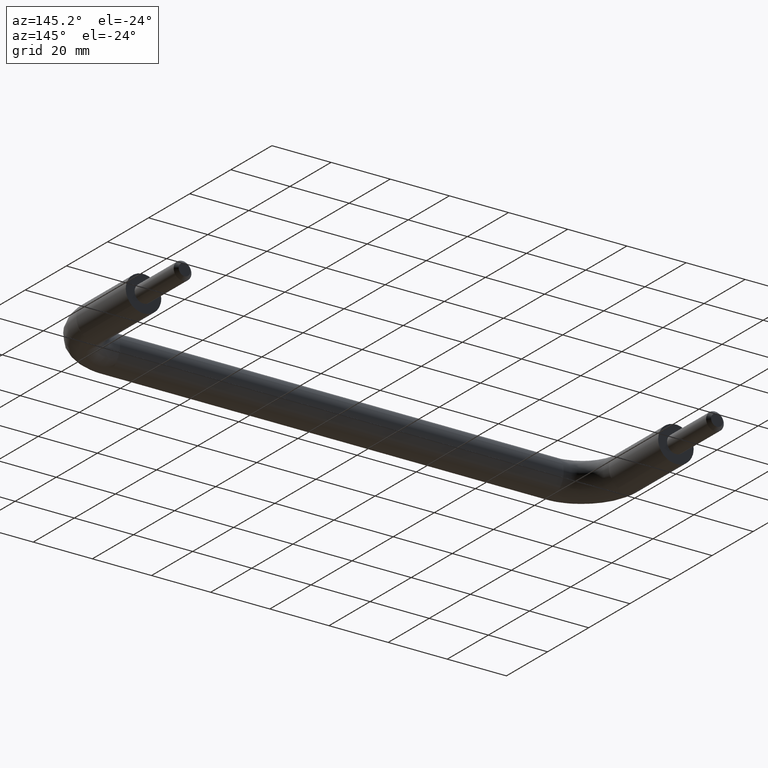
[diagram: clean part render]
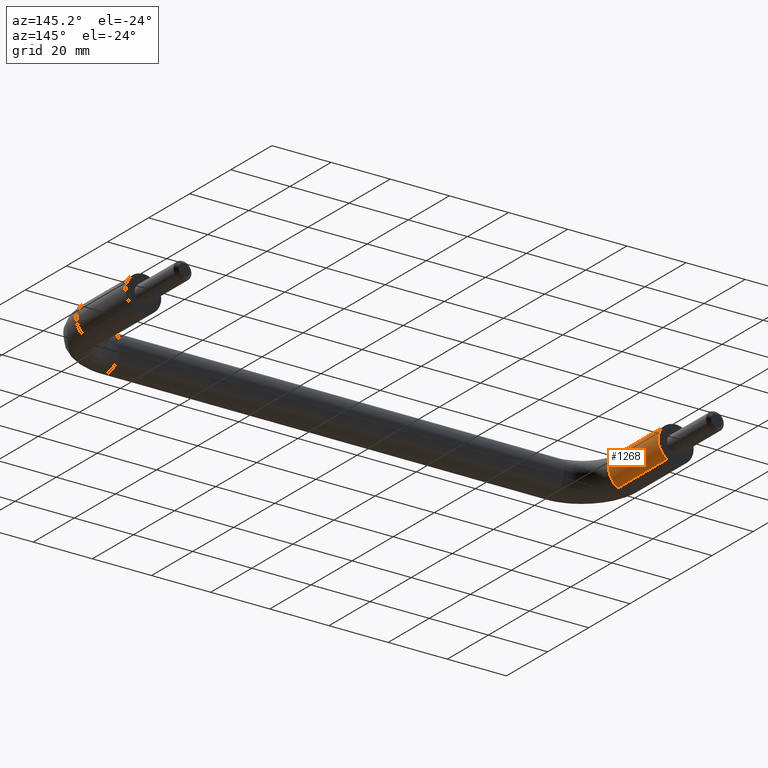
[diagram: same view with one face highlighted and labeled with its STEP entity id]
A machine part, auxiliary view. The second image highlights one B-rep face of the part: STEP entity #1268.
In plain terms, the highlighted face is a freeform B-spline surface patch.
Its self-contained STEP definition (entity closure, byte-faithful):
#1170=CARTESIAN_POINT('',(2.858452214625503,0.600000000015521,-5.275615613930971));
#1171=CARTESIAN_POINT('',(2.881914728903769,0.600000000015521,-5.262630804775241));
#1172=CARTESIAN_POINT('',(3.528453658424199,0.600000000015521,-4.904818146165622));
#1173=CARTESIAN_POINT('',(4.053541245693961,0.600000000015521,-4.423664020860743));
#1174=CARTESIAN_POINT('',(8.477205266554705,0.600000000015522,-0.370122775166782));
#1175=CARTESIAN_POINT('',(4.407069002992790,0.600000000015522,4.071651529768659));
#1176=CARTESIAN_POINT('',(4.390530172574747,0.600000000015521,4.089700496001606));
#1177=CARTESIAN_POINT('',(2.858452214625507,-24.615000000636691,-5.275615613930971));
#1178=CARTESIAN_POINT('',(2.881914728903774,-24.615000000636694,-5.262630804775241));
#1179=CARTESIAN_POINT('',(3.528453658424203,-24.615000000636691,-4.904818146165622));
#1180=CARTESIAN_POINT('',(4.053541245693965,-24.615000000636691,-4.423664020860743));
#1181=CARTESIAN_POINT('',(8.477205266554709,-24.615000000636698,-0.370122775166782));
#1182=CARTESIAN_POINT('',(4.407069002992794,-24.615000000636709,4.071651529768659));
#1183=CARTESIAN_POINT('',(4.390530172574751,-24.615000000636687,4.089700496001606));
#1191=(BOUNDED_SURFACE()B_SPLINE_SURFACE(2,1,((#1170,#1177),(#1171,#1178),(#1172,#1179),(#1173,#1180),(#1174,#1181),(#1175,#1182),(#1176,#1183)),.UNSPECIFIED.,.F.,.F.,.U.)B_SPLINE_SURFACE_WITH_KNOTS((3,1,2,1,3),(2,2),(0.0,0.057669180492771,1.648249260005459,11.589374756959741,11.647028933244140),(0.0,25.215000000652221),.UNSPECIFIED.)GEOMETRIC_REPRESENTATION_ITEM()RATIONAL_B_SPLINE_SURFACE(((0.918959534229402,0.918959534229402),(0.920114918506173,0.920114918506173),(0.953137084989848,0.953137084989848),(1.0,1.0),(0.707106781186548,0.707106781186548),(1.001698652458934,1.001698652458934),(1.003397304917869,1.003397304917869)))REPRESENTATION_ITEM('')SURFACE());
#1192=CARTESIAN_POINT('',(2.905318393535143,-24.0,-5.249678564653877));
#1193=VERTEX_POINT('',#1192);
#1194=CARTESIAN_POINT('',(6.000000000000003,-24.0,0.0));
#1195=VERTEX_POINT('',#1194);
#1196=CARTESIAN_POINT('',(2.905318393535143,-23.999999999999996,-5.249678564653877));
#1197=CARTESIAN_POINT('',(6.000000000000003,-23.999999999999996,-3.536995534121349));
#1198=CARTESIAN_POINT('',(6.000000000000003,-24.0,0.0));
#1206=(BOUNDED_CURVE()B_SPLINE_CURVE(2,(#1196,#1197,#1198),.UNSPECIFIED.,.F.,.U.)B_SPLINE_CURVE_WITH_KNOTS((3,3),(0.332484288971161,0.500000000000000),.UNSPECIFIED.)CURVE()GEOMETRIC_REPRESENTATION_ITEM()RATIONAL_B_SPLINE_CURVE((0.870495137452543,0.803743136779756,1.0))REPRESENTATION_ITEM(''));
#1207=EDGE_CURVE('',#1193,#1195,#1206,.T.);
#1208=ORIENTED_EDGE('',*,*,#1207,.F.);
#1209=CARTESIAN_POINT('',(2.905309782396585,0.0,-5.249683330279442));
#1210=VERTEX_POINT('',#1209);
#1211=CARTESIAN_POINT('',(2.905309782396585,0.0,-5.249683330279442));
#1212=CARTESIAN_POINT('',(2.905318393535143,-24.0,-5.249678564653877));
#1213=QUASI_UNIFORM_CURVE('',1,(#1211,#1212),.UNSPECIFIED.,.F.,.U.);
#1214=EDGE_CURVE('',#1210,#1193,#1213,.T.);
#1215=ORIENTED_EDGE('',*,*,#1214,.F.);
#1216=CARTESIAN_POINT('',(6.0,0.0,0.0));
#1217=VERTEX_POINT('',#1216);
#1218=CARTESIAN_POINT('',(2.905309782396584,0.0,-5.249683330279442));
#1219=CARTESIAN_POINT('',(6.000000000000001,0.0,-3.537002165154155));
#1220=CARTESIAN_POINT('',(6.0,0.0,0.0));
#1228=(BOUNDED_CURVE()B_SPLINE_CURVE(2,(#1218,#1219,#1220),.UNSPECIFIED.,.F.,.U.)B_SPLINE_CURVE_WITH_KNOTS((3,3),(0.332484036553738,0.500000000000000),.UNSPECIFIED.)CURVE()GEOMETRIC_REPRESENTATION_ITEM()RATIONAL_B_SPLINE_CURVE((0.870495338620754,0.803742841054351,1.0))REPRESENTATION_ITEM(''));
#1229=EDGE_CURVE('',#1210,#1217,#1228,.T.);
#1230=ORIENTED_EDGE('',*,*,#1229,.T.);
#1231=CARTESIAN_POINT('',(4.423666584787512,1.110223E-016,4.053538447655331));
#1232=VERTEX_POINT('',#1231);
#1233=CARTESIAN_POINT('',(6.0,0.0,0.0));
#1234=CARTESIAN_POINT('',(6.000000000000001,0.0,2.333270206611333));
#1235=CARTESIAN_POINT('',(4.423666584787512,1.110223E-016,4.053538447655331));
#1243=(BOUNDED_CURVE()B_SPLINE_CURVE(2,(#1233,#1234,#1235),.UNSPECIFIED.,.F.,.U.)B_SPLINE_CURVE_WITH_KNOTS((3,3),(0.500000000000000,0.618415113599380),.UNSPECIFIED.)CURVE()GEOMETRIC_REPRESENTATION_ITEM()RATIONAL_B_SPLINE_CURVE((1.0,0.861268064886868,0.853959792624003))REPRESENTATION_ITEM(''));
#1244=EDGE_CURVE('',#1217,#1232,#1243,.T.);
#1245=ORIENTED_EDGE('',*,*,#1244,.T.);
#1246=CARTESIAN_POINT('',(4.423666547451096,-24.000000000116419,4.053538488362753));
#1247=VERTEX_POINT('',#1246);
#1248=CARTESIAN_POINT('',(4.423666584787512,1.110223E-016,4.053538447655331));
#1249=CARTESIAN_POINT('',(4.423666547451096,-24.000000000116419,4.053538488362753));
#1250=QUASI_UNIFORM_CURVE('',1,(#1248,#1249),.UNSPECIFIED.,.F.,.U.);
#1251=EDGE_CURVE('',#1232,#1247,#1250,.T.);
#1252=ORIENTED_EDGE('',*,*,#1251,.T.);
#1253=CARTESIAN_POINT('',(6.000000000000003,-24.0,0.0));
#1254=CARTESIAN_POINT('',(6.000000000000002,-24.000000000000004,2.333270238378407));
#1255=CARTESIAN_POINT('',(4.423666547451097,-24.000000000116430,4.053538488362754));
#1263=(BOUNDED_CURVE()B_SPLINE_CURVE(2,(#1253,#1254,#1255),.UNSPECIFIED.,.F.,.U.)B_SPLINE_CURVE_WITH_KNOTS((3,3),(0.500000000000000,0.618415114987918),.UNSPECIFIED.)CURVE()GEOMETRIC_REPRESENTATION_ITEM()RATIONAL_B_SPLINE_CURVE((1.0,0.861268063260095,0.853959792452609))REPRESENTATION_ITEM(''));
#1264=EDGE_CURVE('',#1195,#1247,#1263,.T.);
#1265=ORIENTED_EDGE('',*,*,#1264,.F.);
#1266=EDGE_LOOP('',(#1208,#1215,#1230,#1245,#1252,#1265));
#1267=FACE_OUTER_BOUND('',#1266,.T.);
#1268=ADVANCED_FACE('',(#1267),#1191,.T.);